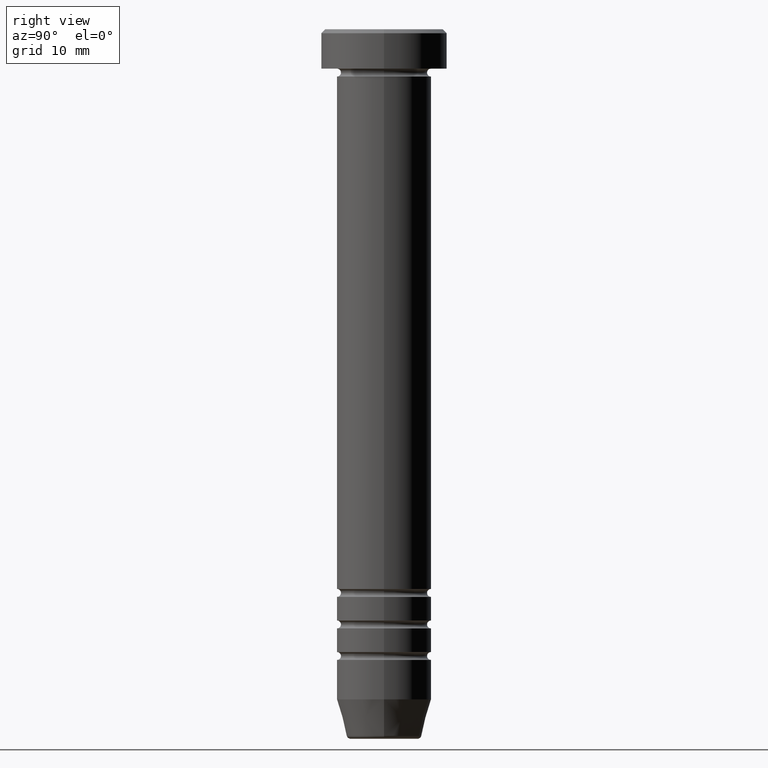
[diagram: clean part render]
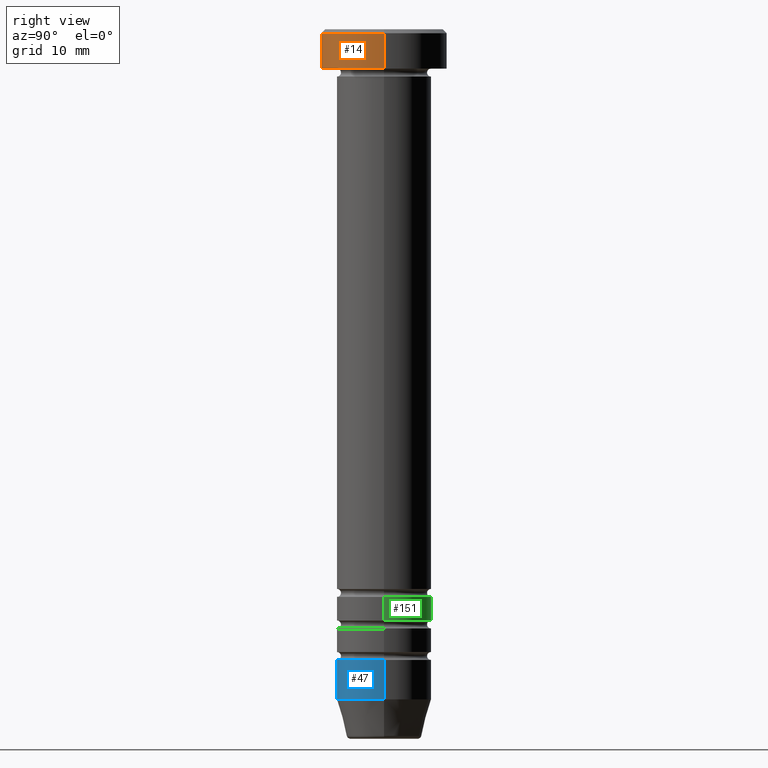
[diagram: same view with three faces highlighted in distinct colors, each labeled with its STEP entity id]
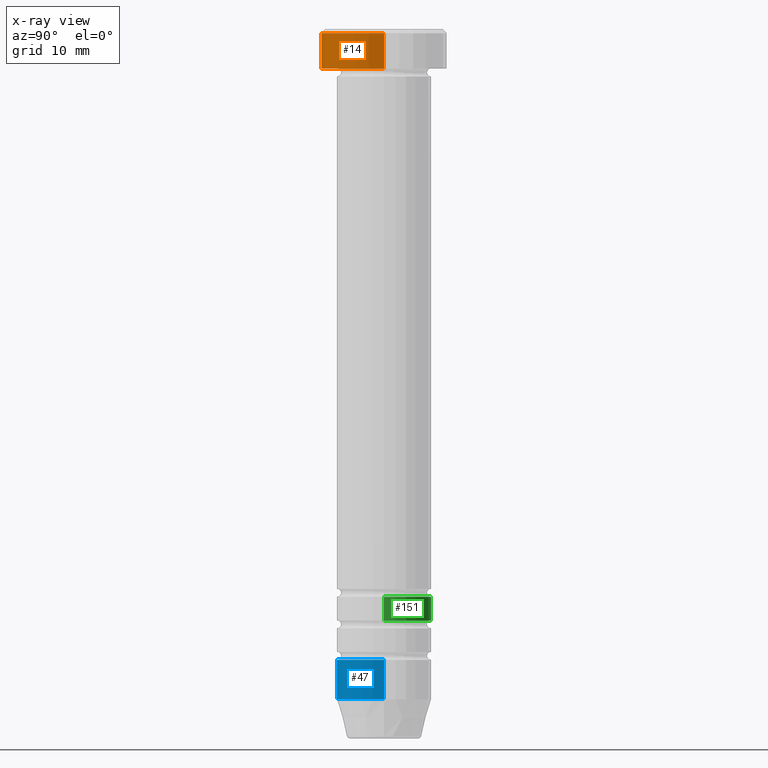
[diagram: x-ray of the same camera — body ghosted, the three highlighted faces saturated]
A machine part, right view with three faces highlighted in distinct colors.
The next image is the same camera in x-ray (body ghosted, the three faces saturated) — at least one of them is partly hidden behind the body in this view.
Their STEP definitions:

[orange] entity #14 — the highlighted cylindrical surface (partial cylindrical patch) has radius 8 mm, axis along (-0, -0, 1).
#13 = ORIENTED_EDGE ( 'NONE', *, *, #422, .T. ) ;
#14 = ADVANCED_FACE ( 'NONE', ( #662 ), #396, .T. ) ;
#19 = CARTESIAN_POINT ( 'NONE',  ( 8.000000000000000000, 0.000000000000000000, -5.000000000000000000 ) ) ;
#43 = CARTESIAN_POINT ( 'NONE',  ( 0.000000000000000000, 0.000000000000000000, -5.000000000000000000 ) ) ;
#52 = ORIENTED_EDGE ( 'NONE', *, *, #809, .T. ) ;
#221 = AXIS2_PLACEMENT_3D ( 'NONE', #339, #243, #492 ) ;
#240 = AXIS2_PLACEMENT_3D ( 'NONE', #455, #719, #970 ) ;
#243 = DIRECTION ( 'NONE',  ( -0.000000000000000000, -0.000000000000000000, 1.000000000000000000 ) ) ;
#248 = DIRECTION ( 'NONE',  ( -0.000000000000000000, -0.000000000000000000, 1.000000000000000000 ) ) ;
#251 = VERTEX_POINT ( 'NONE', #1052 ) ;
#339 = CARTESIAN_POINT ( 'NONE',  ( 0.000000000000000000, 0.000000000000000000, 0.000000000000000000 ) ) ;
#353 = ORIENTED_EDGE ( 'NONE', *, *, #383, .T. ) ;
#355 = LINE ( 'NONE', #989, #716 ) ;
#362 = DIRECTION ( 'NONE',  ( -0.000000000000000000, -0.000000000000000000, 1.000000000000000000 ) ) ;
#383 = EDGE_CURVE ( 'NONE', #756, #251, #438, .T. ) ;
#396 = CYLINDRICAL_SURFACE ( 'NONE', #221, 8.000000000000000000 ) ;
#422 = EDGE_CURVE ( 'NONE', #672, #756, #513, .T. ) ;
#438 = LINE ( 'NONE', #778, #560 ) ;
#455 = CARTESIAN_POINT ( 'NONE',  ( 0.000000000000000000, 0.000000000000000000, -0.4999999999999935052 ) ) ;
#492 = DIRECTION ( 'NONE',  ( 1.000000000000000000, 0.000000000000000000, 0.000000000000000000 ) ) ;
#513 = CIRCLE ( 'NONE', #895, 8.000000000000000000 ) ;
#552 = EDGE_CURVE ( 'NONE', #672, #711, #355, .T. ) ;
#560 = VECTOR ( 'NONE', #702, 1000.000000000000000 ) ;
#662 = FACE_OUTER_BOUND ( 'NONE', #767, .T. ) ;
#672 = VERTEX_POINT ( 'NONE', #927 ) ;
#702 = DIRECTION ( 'NONE',  ( -0.000000000000000000, -0.000000000000000000, 1.000000000000000000 ) ) ;
#707 = DIRECTION ( 'NONE',  ( 1.000000000000000000, 0.000000000000000000, 0.000000000000000000 ) ) ;
#711 = VERTEX_POINT ( 'NONE', #936 ) ;
#716 = VECTOR ( 'NONE', #248, 1000.000000000000000 ) ;
#719 = DIRECTION ( 'NONE',  ( 0.000000000000000000, 0.000000000000000000, -1.000000000000000000 ) ) ;
#756 = VERTEX_POINT ( 'NONE', #19 ) ;
#767 = EDGE_LOOP ( 'NONE', ( #944, #13, #353, #52 ) ) ;
#778 = CARTESIAN_POINT ( 'NONE',  ( 8.000000000000000000, 0.000000000000000000, 0.000000000000000000 ) ) ;
#809 = EDGE_CURVE ( 'NONE', #251, #711, #833, .T. ) ;
#833 = CIRCLE ( 'NONE', #240, 8.000000000000000000 ) ;
#895 = AXIS2_PLACEMENT_3D ( 'NONE', #43, #362, #707 ) ;
#927 = CARTESIAN_POINT ( 'NONE',  ( -8.000000000000000000, 9.797174393178825657E-16, -5.000000000000000000 ) ) ;
#936 = CARTESIAN_POINT ( 'NONE',  ( -8.000000000000000000, 9.797174393178825657E-16, -0.4999999999999935052 ) ) ;
#944 = ORIENTED_EDGE ( 'NONE', *, *, #552, .F. ) ;
#970 = DIRECTION ( 'NONE',  ( 1.000000000000000000, 0.000000000000000000, 0.000000000000000000 ) ) ;
#989 = CARTESIAN_POINT ( 'NONE',  ( -8.000000000000000000, 9.797174393178825657E-16, 0.000000000000000000 ) ) ;
#1052 = CARTESIAN_POINT ( 'NONE',  ( 8.000000000000000000, 0.000000000000000000, -0.4999999999999935052 ) ) ;

[blue] entity #47 — the highlighted cylindrical surface (partial cylindrical patch) has radius 6 mm, axis along (-0, -0, 1).
#5 = CARTESIAN_POINT ( 'NONE',  ( 0.000000000000000000, 0.000000000000000000, 0.000000000000000000 ) ) ;
#47 = ADVANCED_FACE ( 'NONE', ( #1011 ), #655, .T. ) ;
#136 = EDGE_CURVE ( 'NONE', #846, #508, #237, .T. ) ;
#167 = EDGE_CURVE ( 'NONE', #508, #1057, #892, .T. ) ;
#169 = CARTESIAN_POINT ( 'NONE',  ( 6.000000000000000000, 0.000000000000000000, -79.99999999999998579 ) ) ;
#205 = CARTESIAN_POINT ( 'NONE',  ( -6.000000000000000000, 7.347880794884119736E-16, 0.000000000000000000 ) ) ;
#237 = CIRCLE ( 'NONE', #375, 6.000000000000000000 ) ;
#292 = VERTEX_POINT ( 'NONE', #483 ) ;
#359 = DIRECTION ( 'NONE',  ( -0.000000000000000000, -0.000000000000000000, 1.000000000000000000 ) ) ;
#368 = DIRECTION ( 'NONE',  ( -0.000000000000000000, -0.000000000000000000, 1.000000000000000000 ) ) ;
#375 = AXIS2_PLACEMENT_3D ( 'NONE', #966, #546, #485 ) ;
#377 = CIRCLE ( 'NONE', #659, 6.000000000000000000 ) ;
#393 = EDGE_CURVE ( 'NONE', #846, #292, #940, .T. ) ;
#394 = DIRECTION ( 'NONE',  ( -0.000000000000000000, -0.000000000000000000, 1.000000000000000000 ) ) ;
#421 = ORIENTED_EDGE ( 'NONE', *, *, #167, .T. ) ;
#460 = EDGE_LOOP ( 'NONE', ( #791, #903, #421, #974 ) ) ;
#483 = CARTESIAN_POINT ( 'NONE',  ( -6.000000000000000000, 7.347880794884119736E-16, -79.99999999999998579 ) ) ;
#485 = DIRECTION ( 'NONE',  ( 1.000000000000000000, 0.000000000000000000, 0.000000000000000000 ) ) ;
#508 = VERTEX_POINT ( 'NONE', #768 ) ;
#522 = DIRECTION ( 'NONE',  ( 1.000000000000000000, 0.000000000000000000, 0.000000000000000000 ) ) ;
#546 = DIRECTION ( 'NONE',  ( -0.000000000000000000, -0.000000000000000000, 1.000000000000000000 ) ) ;
#566 = DIRECTION ( 'NONE',  ( 1.000000000000000000, 0.000000000000000000, 0.000000000000000000 ) ) ;
#589 = DIRECTION ( 'NONE',  ( -0.000000000000000000, -0.000000000000000000, 1.000000000000000000 ) ) ;
#619 = VECTOR ( 'NONE', #394, 1000.000000000000000 ) ;
#655 = CYLINDRICAL_SURFACE ( 'NONE', #761, 6.000000000000000000 ) ;
#659 = AXIS2_PLACEMENT_3D ( 'NONE', #852, #359, #522 ) ;
#732 = EDGE_CURVE ( 'NONE', #292, #1057, #377, .T. ) ;
#761 = AXIS2_PLACEMENT_3D ( 'NONE', #5, #589, #566 ) ;
#768 = CARTESIAN_POINT ( 'NONE',  ( 6.000000000000000000, 0.000000000000000000, -84.99999999999998579 ) ) ;
#791 = ORIENTED_EDGE ( 'NONE', *, *, #393, .F. ) ;
#834 = CARTESIAN_POINT ( 'NONE',  ( 6.000000000000000000, 0.000000000000000000, 0.000000000000000000 ) ) ;
#846 = VERTEX_POINT ( 'NONE', #975 ) ;
#852 = CARTESIAN_POINT ( 'NONE',  ( 0.000000000000000000, 0.000000000000000000, -79.99999999999998579 ) ) ;
#892 = LINE ( 'NONE', #834, #619 ) ;
#903 = ORIENTED_EDGE ( 'NONE', *, *, #136, .T. ) ;
#940 = LINE ( 'NONE', #205, #968 ) ;
#966 = CARTESIAN_POINT ( 'NONE',  ( 0.000000000000000000, 0.000000000000000000, -84.99999999999998579 ) ) ;
#968 = VECTOR ( 'NONE', #368, 1000.000000000000000 ) ;
#974 = ORIENTED_EDGE ( 'NONE', *, *, #732, .F. ) ;
#975 = CARTESIAN_POINT ( 'NONE',  ( -6.000000000000000000, 7.347880794884119736E-16, -84.99999999999998579 ) ) ;
#1011 = FACE_OUTER_BOUND ( 'NONE', #460, .T. ) ;
#1057 = VERTEX_POINT ( 'NONE', #169 ) ;

[green] entity #151 — the highlighted cylindrical surface (partial cylindrical patch) has radius 6 mm, axis along (-0, -0, 1).
#16 = VERTEX_POINT ( 'NONE', #828 ) ;
#48 = DIRECTION ( 'NONE',  ( -0.000000000000000000, -0.000000000000000000, 1.000000000000000000 ) ) ;
#75 = CARTESIAN_POINT ( 'NONE',  ( -6.000000000000000888, 7.347880794884120722E-16, -72.00000000000000000 ) ) ;
#116 = DIRECTION ( 'NONE',  ( 1.000000000000000000, 0.000000000000000000, 0.000000000000000000 ) ) ;
#121 = CARTESIAN_POINT ( 'NONE',  ( 5.999999999999999112, 0.000000000000000000, 0.000000000000000000 ) ) ;
#127 = DIRECTION ( 'NONE',  ( -0.000000000000000000, -0.000000000000000000, 1.000000000000000000 ) ) ;
#135 = ORIENTED_EDGE ( 'NONE', *, *, #965, .F. ) ;
#149 = CIRCLE ( 'NONE', #398, 6.000000000000000000 ) ;
#151 = ADVANCED_FACE ( 'NONE', ( #249 ), #1002, .T. ) ;
#172 = CARTESIAN_POINT ( 'NONE',  ( -5.999999999999999112, 7.347880794884118750E-16, 0.000000000000000000 ) ) ;
#225 = EDGE_CURVE ( 'NONE', #1037, #300, #579, .T. ) ;
#235 = CARTESIAN_POINT ( 'NONE',  ( -5.999999999999998224, 7.347880794884118750E-16, -74.99999999999998579 ) ) ;
#249 = FACE_OUTER_BOUND ( 'NONE', #458, .T. ) ;
#250 = CARTESIAN_POINT ( 'NONE',  ( 0.000000000000000000, 0.000000000000000000, -72.00000000000000000 ) ) ;
#300 = VERTEX_POINT ( 'NONE', #75 ) ;
#316 = DIRECTION ( 'NONE',  ( 1.000000000000000000, 0.000000000000000000, 0.000000000000000000 ) ) ;
#379 = EDGE_CURVE ( 'NONE', #16, #1037, #532, .T. ) ;
#398 = AXIS2_PLACEMENT_3D ( 'NONE', #250, #733, #316 ) ;
#405 = AXIS2_PLACEMENT_3D ( 'NONE', #910, #822, #416 ) ;
#416 = DIRECTION ( 'NONE',  ( 1.000000000000000000, 0.000000000000000000, 0.000000000000000000 ) ) ;
#427 = VERTEX_POINT ( 'NONE', #461 ) ;
#458 = EDGE_LOOP ( 'NONE', ( #677, #692, #135, #935 ) ) ;
#461 = CARTESIAN_POINT ( 'NONE',  ( 6.000000000000000000, 0.000000000000000000, -72.00000000000000000 ) ) ;
#516 = VECTOR ( 'NONE', #127, 1000.000000000000000 ) ;
#518 = CARTESIAN_POINT ( 'NONE',  ( 0.000000000000000000, 0.000000000000000000, -74.99999999999998579 ) ) ;
#532 = CIRCLE ( 'NONE', #544, 5.999999999999998224 ) ;
#544 = AXIS2_PLACEMENT_3D ( 'NONE', #518, #48, #116 ) ;
#579 = LINE ( 'NONE', #172, #893 ) ;
#677 = ORIENTED_EDGE ( 'NONE', *, *, #379, .T. ) ;
#692 = ORIENTED_EDGE ( 'NONE', *, *, #225, .T. ) ;
#699 = EDGE_CURVE ( 'NONE', #16, #427, #948, .T. ) ;
#733 = DIRECTION ( 'NONE',  ( -0.000000000000000000, -0.000000000000000000, 1.000000000000000000 ) ) ;
#822 = DIRECTION ( 'NONE',  ( -0.000000000000000000, -0.000000000000000000, 1.000000000000000000 ) ) ;
#828 = CARTESIAN_POINT ( 'NONE',  ( 5.999999999999998224, 0.000000000000000000, -74.99999999999998579 ) ) ;
#889 = DIRECTION ( 'NONE',  ( -0.000000000000000000, -0.000000000000000000, 1.000000000000000000 ) ) ;
#893 = VECTOR ( 'NONE', #889, 1000.000000000000000 ) ;
#910 = CARTESIAN_POINT ( 'NONE',  ( 0.000000000000000000, 0.000000000000000000, 0.000000000000000000 ) ) ;
#935 = ORIENTED_EDGE ( 'NONE', *, *, #699, .F. ) ;
#948 = LINE ( 'NONE', #121, #516 ) ;
#965 = EDGE_CURVE ( 'NONE', #427, #300, #149, .T. ) ;
#1002 = CYLINDRICAL_SURFACE ( 'NONE', #405, 5.999999999999999112 ) ;
#1037 = VERTEX_POINT ( 'NONE', #235 ) ;